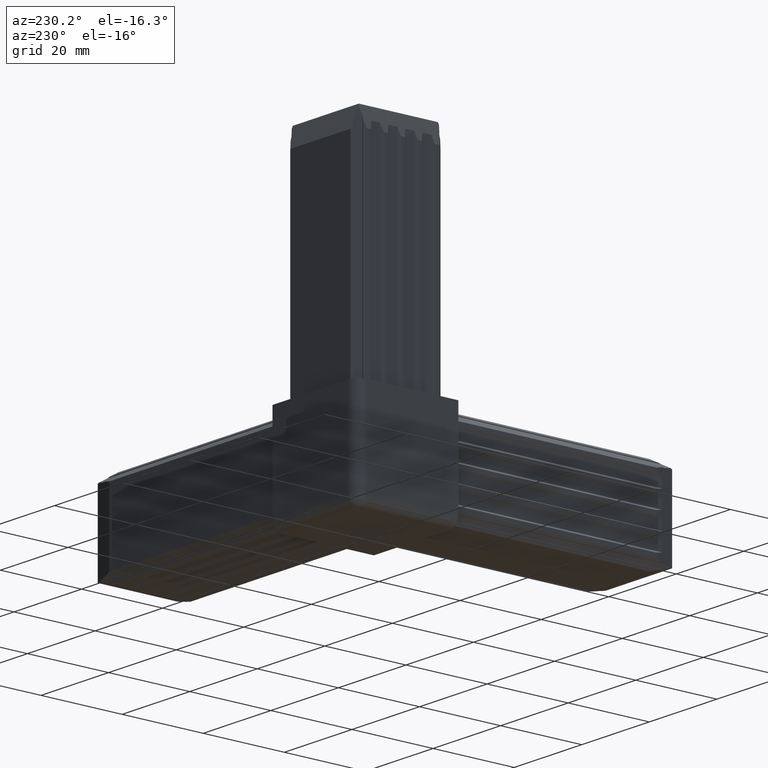
[diagram: clean part render]
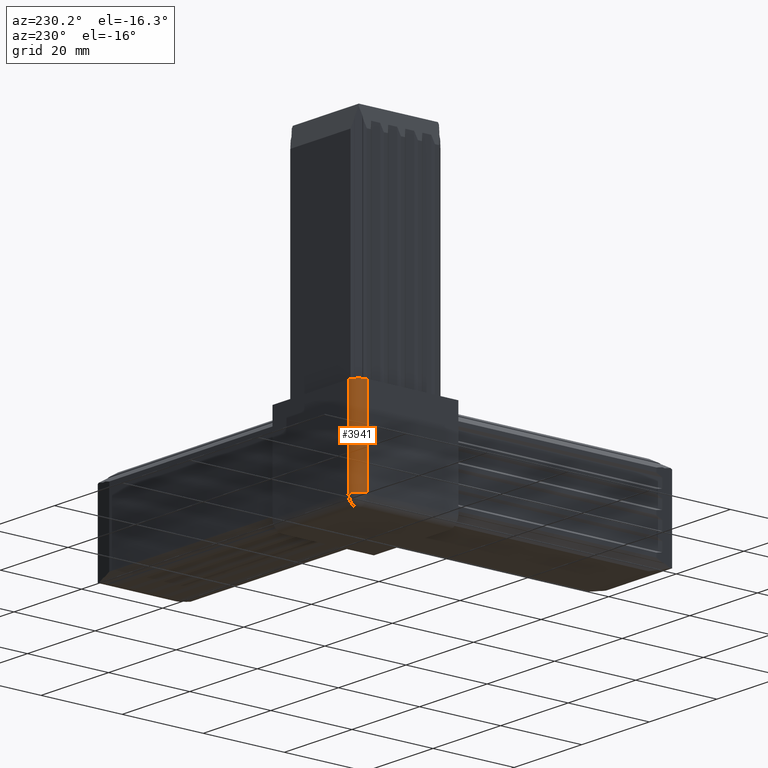
[diagram: same view with one face highlighted and labeled with its STEP entity id]
A machine part, auxiliary view. The second image highlights one B-rep face of the part: STEP entity #3941.
In plain terms, the highlighted cylindrical surface (edge-blend (fillet) strip) has radius 2.5 mm, axis along (0, 0, 1).
Its self-contained STEP definition (entity closure, byte-faithful):
#214=CYLINDRICAL_SURFACE('',#4181,2.5);
#230=FACE_OUTER_BOUND('',#435,.T.);
#435=EDGE_LOOP('',(#2815,#2816,#2817,#2818));
#648=LINE('',#5475,#1212);
#649=LINE('',#5476,#1213);
#1212=VECTOR('',#4462,10.);
#1213=VECTOR('',#4463,10.);
#1771=CIRCLE('',#4179,2.5);
#1773=CIRCLE('',#4182,2.5);
#1806=VERTEX_POINT('',#5465);
#1808=VERTEX_POINT('',#5468);
#1809=VERTEX_POINT('',#5472);
#1810=VERTEX_POINT('',#5473);
#2204=EDGE_CURVE('',#1808,#1806,#1771,.F.);
#2206=EDGE_CURVE('',#1809,#1810,#1773,.T.);
#2207=EDGE_CURVE('',#1810,#1808,#648,.T.);
#2208=EDGE_CURVE('',#1806,#1809,#649,.T.);
#2815=ORIENTED_EDGE('',*,*,#2206,.T.);
#2816=ORIENTED_EDGE('',*,*,#2207,.T.);
#2817=ORIENTED_EDGE('',*,*,#2204,.T.);
#2818=ORIENTED_EDGE('',*,*,#2208,.T.);
#3941=ADVANCED_FACE('',(#230),#214,.T.);
#4179=AXIS2_PLACEMENT_3D('',#5469,#4454,#4455);
#4181=AXIS2_PLACEMENT_3D('',#5471,#4458,#4459);
#4182=AXIS2_PLACEMENT_3D('',#5474,#4460,#4461);
#4454=DIRECTION('center_axis',(0.,0.,-1.));
#4455=DIRECTION('ref_axis',(0.,1.,0.));
#4458=DIRECTION('center_axis',(0.,0.,1.));
#4459=DIRECTION('ref_axis',(-0.707106781186547,0.707106781186547,0.));
#4460=DIRECTION('center_axis',(0.,0.,-1.));
#4461=DIRECTION('ref_axis',(-0.707106781186547,0.707106781186547,0.));
#4462=DIRECTION('',(0.,0.,-1.));
#4463=DIRECTION('',(0.,0.,1.));
#5465=CARTESIAN_POINT('',(-12.5,10.,-10.));
#5468=CARTESIAN_POINT('',(-10.,12.5,-10.));
#5469=CARTESIAN_POINT('Origin',(-10.,10.,-10.));
#5471=CARTESIAN_POINT('Origin',(-10.,10.,0.));
#5472=CARTESIAN_POINT('',(-12.5,10.,12.5));
#5473=CARTESIAN_POINT('',(-10.,12.5,12.5));
#5474=CARTESIAN_POINT('Origin',(-10.,10.,12.5));
#5475=CARTESIAN_POINT('',(-10.,12.5,0.));
#5476=CARTESIAN_POINT('',(-12.5,10.,0.));